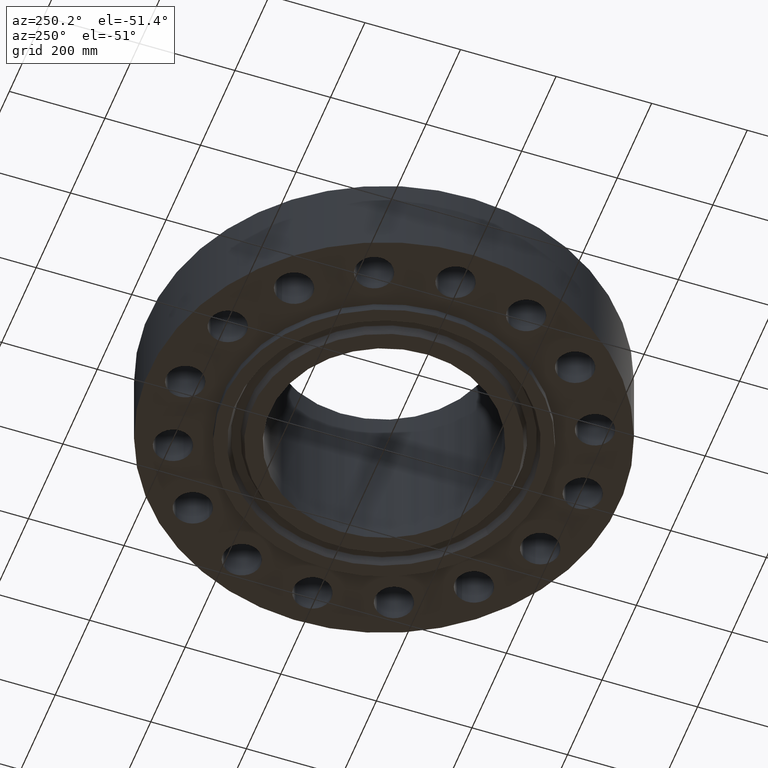
[diagram: clean part render]
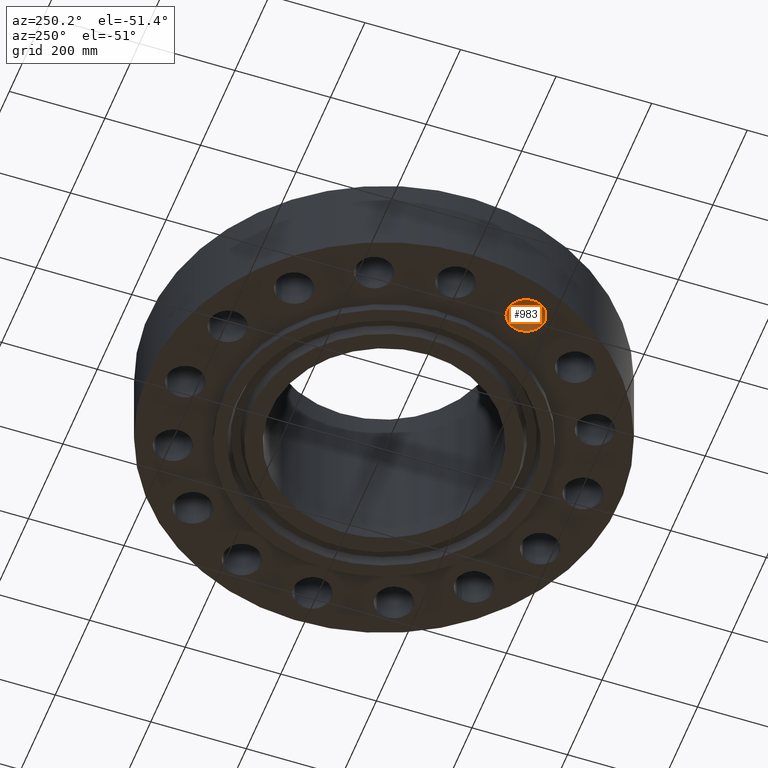
[diagram: same view with one face highlighted and labeled with its STEP entity id]
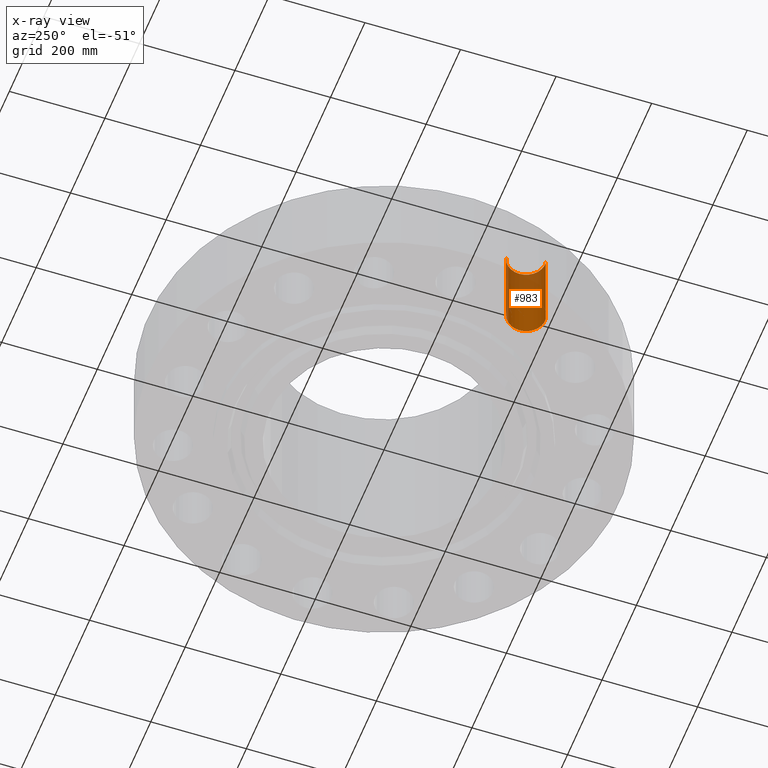
[diagram: x-ray of the same camera — body ghosted, the highlighted face saturated]
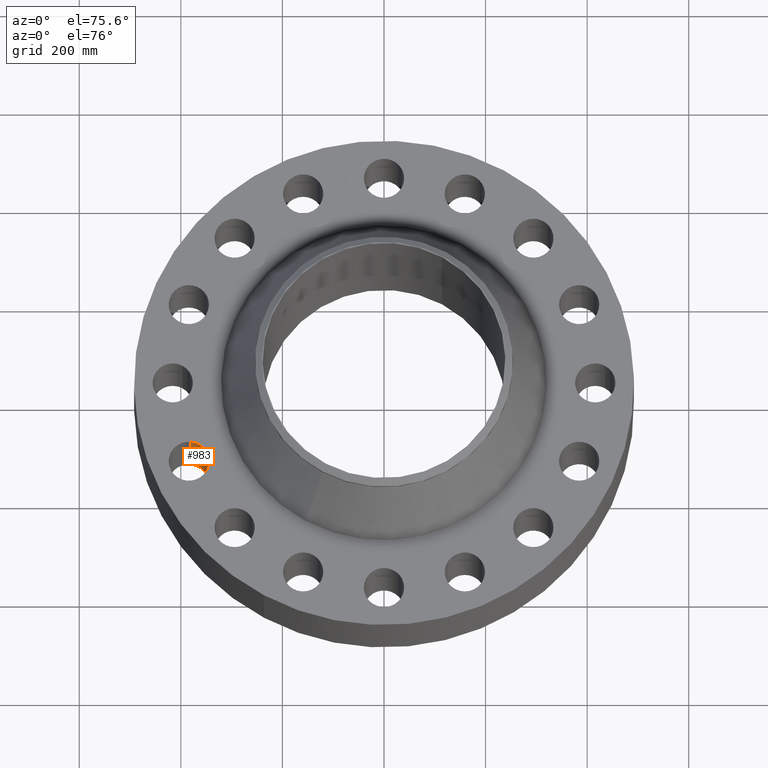
[diagram: same view with one face highlighted and labeled with its STEP entity id]
A machine part, auxiliary view. The second image highlights one B-rep face of the part: STEP entity #983.
The next image is the same camera in x-ray: the body ghosted, the highlighted face saturated — about 24% of this face is hidden behind the body in this view.
A second angle (auxiliary view) of the same face is appended — the face is thin or edge-on in the first view.
In plain terms, the highlighted cylindrical surface (edge-blend (fillet) strip) has radius 39.624 mm, axis along (0, 0, -1).
Its self-contained STEP definition (entity closure, byte-faithful):
#689=AXIS2_PLACEMENT_3D('Circle Axis2P3D',#687,#688,$) ;
#944=AXIS2_PLACEMENT_3D('Cylinder Axis2P3D',#941,#942,#943) ;
#974=AXIS2_PLACEMENT_3D('Circle Axis2P3D',#972,#973,$) ;
#682=CARTESIAN_POINT('Vertex',(-15.2955957563,-7.81746929822,0.)) ;
#684=CARTESIAN_POINT('Vertex',(-14.9614589335,-4.71541311179,0.)) ;
#687=CARTESIAN_POINT('Axis2P3D Location',(-15.1285273449,-6.266441205,0.)) ;
#941=CARTESIAN_POINT('Axis2P3D Location',(-15.1285273449,-6.266441205,6.99606299215)) ;
#946=CARTESIAN_POINT('Line Origine',(-15.2955957563,-7.81746929822,3.50000000001)) ;
#950=CARTESIAN_POINT('Vertex',(-15.2955957563,-7.81746929822,7.00000000003)) ;
#953=CARTESIAN_POINT('Line Origine',(-14.9614589335,-4.71541311179,3.50000000001)) ;
#957=CARTESIAN_POINT('Vertex',(-14.9614589335,-4.71541311179,7.00000000003)) ;
#972=CARTESIAN_POINT('Axis2P3D Location',(-15.1285273449,-6.266441205,7.00000000003)) ;
#688=DIRECTION('Axis2P3D Direction',(0.,0.,-0.0393700787402)) ;
#942=DIRECTION('Axis2P3D Direction',(0.,0.,-0.0393700787402)) ;
#943=DIRECTION('Axis2P3D XDirection',(0.00421634391778,0.0391436526652,0.)) ;
#947=DIRECTION('Vector Direction',(0.,0.,-0.0393700787402)) ;
#954=DIRECTION('Vector Direction',(0.,0.,-0.0393700787402)) ;
#973=DIRECTION('Axis2P3D Direction',(0.,0.,-0.0393700787402)) ;
#948=VECTOR('Line Direction',#947,0.0393700787402) ;
#955=VECTOR('Line Direction',#954,0.0393700787402) ;
#978=ORIENTED_EDGE('',*,*,#959,.F.) ;
#979=ORIENTED_EDGE('',*,*,#691,.T.) ;
#980=ORIENTED_EDGE('',*,*,#952,.T.) ;
#981=ORIENTED_EDGE('',*,*,#976,.F.) ;
#983=ADVANCED_FACE('PartBody',(#982),#945,.F.) ;
#690=CIRCLE('generated circle',#689,1.56000000001) ;
#975=CIRCLE('generated circle',#974,1.56000000001) ;
#945=CYLINDRICAL_SURFACE('generated cylinder',#944,1.56000000001) ;
#691=EDGE_CURVE('',#685,#683,#690,.T.) ;
#952=EDGE_CURVE('',#683,#951,#949,.F.) ;
#959=EDGE_CURVE('',#685,#958,#956,.F.) ;
#976=EDGE_CURVE('',#958,#951,#975,.T.) ;
#977=EDGE_LOOP('',(#978,#979,#980,#981)) ;
#982=FACE_OUTER_BOUND('',#977,.T.) ;
#949=LINE('Line',#946,#948) ;
#956=LINE('Line',#953,#955) ;
#683=VERTEX_POINT('',#682) ;
#685=VERTEX_POINT('',#684) ;
#951=VERTEX_POINT('',#950) ;
#958=VERTEX_POINT('',#957) ;